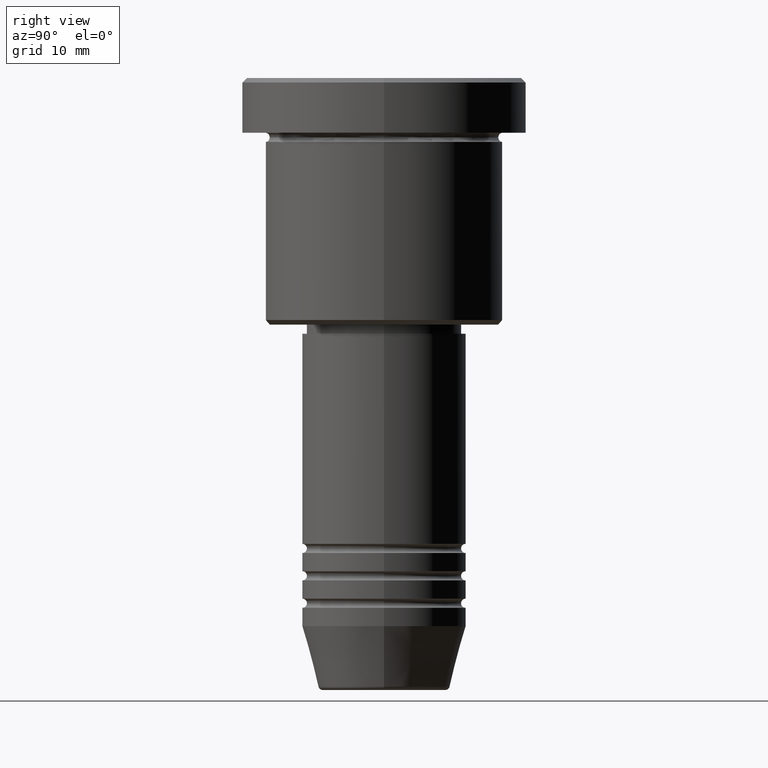
[diagram: clean part render]
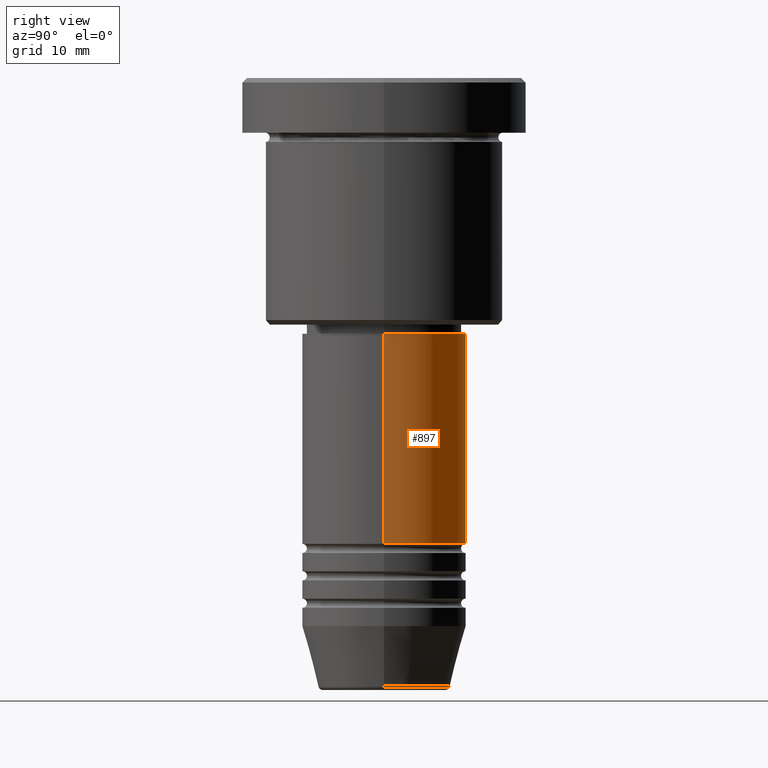
[diagram: same view with one face highlighted and labeled with its STEP entity id]
A machine part, right view. The second image highlights one B-rep face of the part: STEP entity #897.
In plain terms, the highlighted cylindrical surface (partial cylindrical patch) has radius 9 mm, axis along (-0, -0, 1).
Its self-contained STEP definition (entity closure, byte-faithful):
#63 = EDGE_CURVE ( 'NONE', #539, #713, #1122, .T. ) ;
#96 = CIRCLE ( 'NONE', #1045, 9.000000000000000000 ) ;
#106 = VERTEX_POINT ( 'NONE', #949 ) ;
#116 = VECTOR ( 'NONE', #742, 1000.000000000000000 ) ;
#131 = AXIS2_PLACEMENT_3D ( 'NONE', #362, #797, #163 ) ;
#163 = DIRECTION ( 'NONE',  ( 1.000000000000000000, 0.000000000000000000, 0.000000000000000000 ) ) ;
#222 = CARTESIAN_POINT ( 'NONE',  ( 9.000000000000000000, 0.000000000000000000, -50.99999999999997868 ) ) ;
#332 = ORIENTED_EDGE ( 'NONE', *, *, #873, .T. ) ;
#362 = CARTESIAN_POINT ( 'NONE',  ( 0.000000000000000000, 0.000000000000000000, -50.99999999999997868 ) ) ;
#367 = CARTESIAN_POINT ( 'NONE',  ( 0.000000000000000000, 0.000000000000000000, 0.000000000000000000 ) ) ;
#369 = CARTESIAN_POINT ( 'NONE',  ( -9.000000000000000000, 1.102182119232617714E-15, 0.000000000000000000 ) ) ;
#421 = CARTESIAN_POINT ( 'NONE',  ( -9.000000000000000000, 1.102182119232617714E-15, -27.99999999999999645 ) ) ;
#435 = FACE_OUTER_BOUND ( 'NONE', #747, .T. ) ;
#447 = DIRECTION ( 'NONE',  ( -0.000000000000000000, -0.000000000000000000, 1.000000000000000000 ) ) ;
#509 = VERTEX_POINT ( 'NONE', #421 ) ;
#519 = DIRECTION ( 'NONE',  ( -0.000000000000000000, -0.000000000000000000, 1.000000000000000000 ) ) ;
#539 = VERTEX_POINT ( 'NONE', #222 ) ;
#549 = ORIENTED_EDGE ( 'NONE', *, *, #618, .T. ) ;
#613 = CIRCLE ( 'NONE', #131, 9.000000000000000000 ) ;
#618 = EDGE_CURVE ( 'NONE', #106, #509, #827, .T. ) ;
#631 = ORIENTED_EDGE ( 'NONE', *, *, #1041, .F. ) ;
#673 = CARTESIAN_POINT ( 'NONE',  ( 9.000000000000000000, 0.000000000000000000, 0.000000000000000000 ) ) ;
#708 = VECTOR ( 'NONE', #519, 1000.000000000000000 ) ;
#713 = VERTEX_POINT ( 'NONE', #941 ) ;
#722 = DIRECTION ( 'NONE',  ( 1.000000000000000000, 0.000000000000000000, 0.000000000000000000 ) ) ;
#742 = DIRECTION ( 'NONE',  ( -0.000000000000000000, -0.000000000000000000, 1.000000000000000000 ) ) ;
#747 = EDGE_LOOP ( 'NONE', ( #332, #549, #631, #915 ) ) ;
#797 = DIRECTION ( 'NONE',  ( -0.000000000000000000, -0.000000000000000000, 1.000000000000000000 ) ) ;
#798 = AXIS2_PLACEMENT_3D ( 'NONE', #367, #447, #722 ) ;
#827 = LINE ( 'NONE', #369, #708 ) ;
#831 = DIRECTION ( 'NONE',  ( 1.000000000000000000, 0.000000000000000000, 0.000000000000000000 ) ) ;
#852 = DIRECTION ( 'NONE',  ( -0.000000000000000000, -0.000000000000000000, 1.000000000000000000 ) ) ;
#873 = EDGE_CURVE ( 'NONE', #539, #106, #613, .T. ) ;
#897 = ADVANCED_FACE ( 'NONE', ( #435 ), #994, .T. ) ;
#915 = ORIENTED_EDGE ( 'NONE', *, *, #63, .F. ) ;
#941 = CARTESIAN_POINT ( 'NONE',  ( 9.000000000000000000, 0.000000000000000000, -27.99999999999999645 ) ) ;
#949 = CARTESIAN_POINT ( 'NONE',  ( -9.000000000000000000, 1.102182119232617714E-15, -50.99999999999997868 ) ) ;
#994 = CYLINDRICAL_SURFACE ( 'NONE', #798, 9.000000000000000000 ) ;
#1041 = EDGE_CURVE ( 'NONE', #713, #509, #96, .T. ) ;
#1045 = AXIS2_PLACEMENT_3D ( 'NONE', #1110, #852, #831 ) ;
#1110 = CARTESIAN_POINT ( 'NONE',  ( 0.000000000000000000, 0.000000000000000000, -27.99999999999999645 ) ) ;
#1122 = LINE ( 'NONE', #673, #116 ) ;